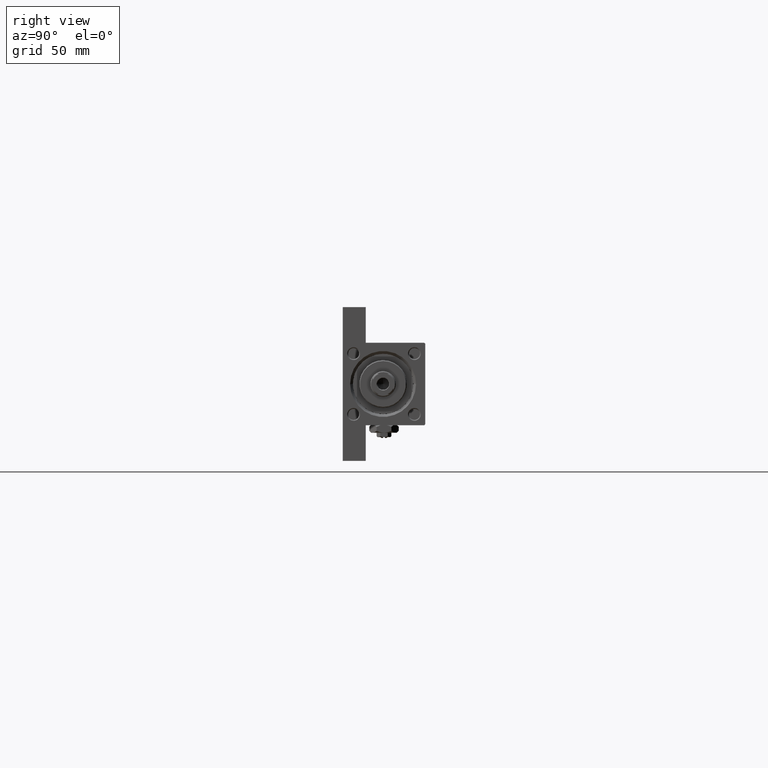
[diagram: clean part render]
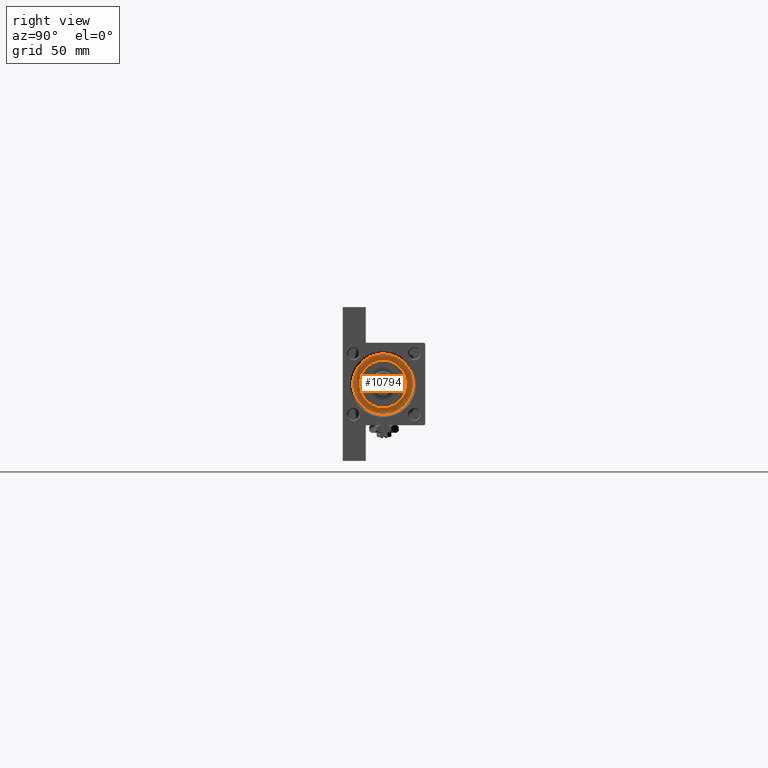
[diagram: same view with one face highlighted and labeled with its STEP entity id]
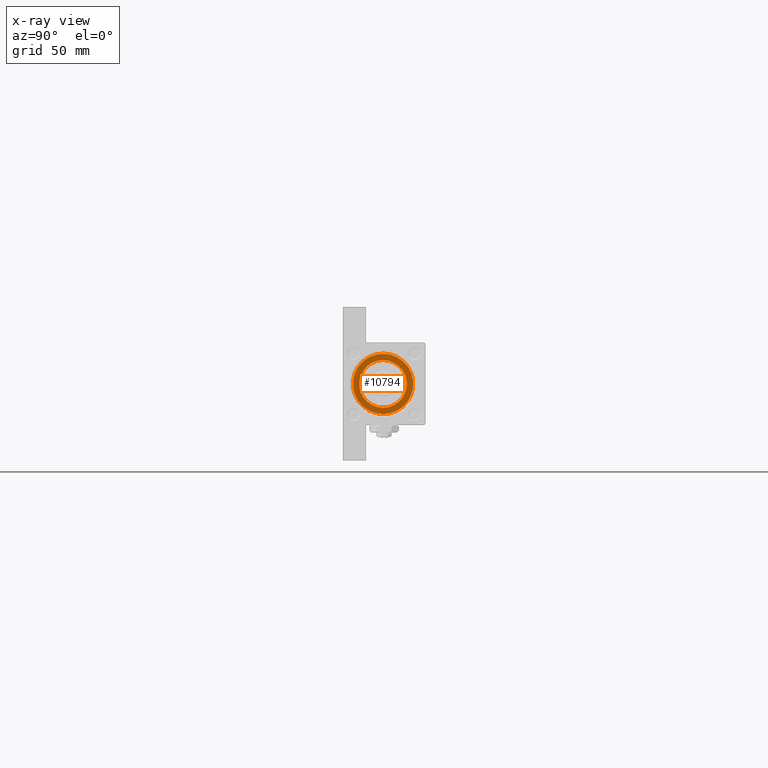
[diagram: x-ray of the same camera — body ghosted, the highlighted face saturated]
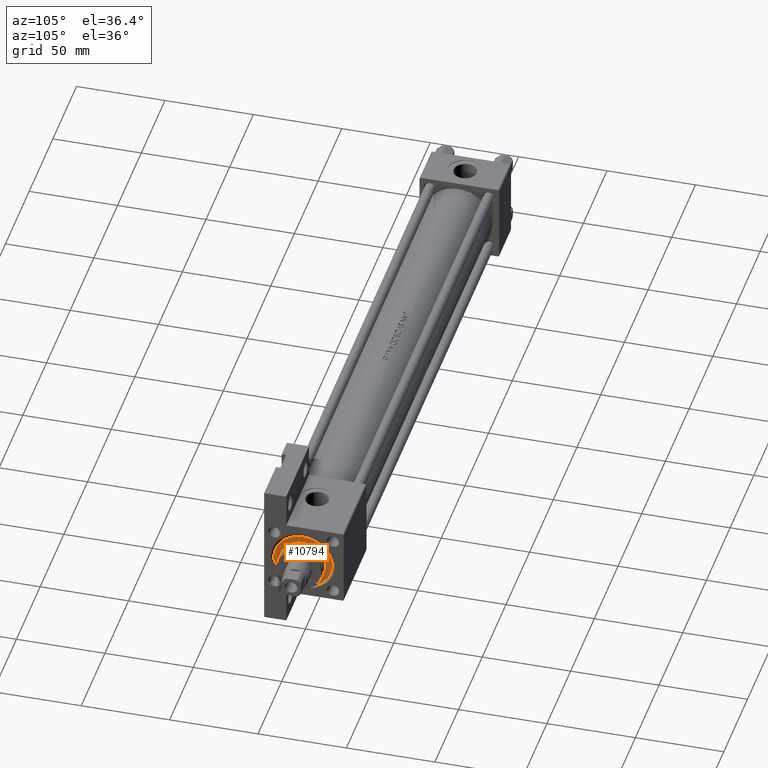
[diagram: same view with one face highlighted and labeled with its STEP entity id]
A machine part, right view. The second image highlights one B-rep face of the part: STEP entity #10794.
The next image is the same camera in x-ray: the body ghosted, the highlighted face saturated — about 0% of this face is hidden behind the body in this view.
A second angle (auxiliary view) of the same face is appended — the face is thin or edge-on in the first view.
In plain terms, the highlighted planar face has unit normal (1, 0, 0).
Its self-contained STEP definition (entity closure, byte-faithful):
#2390 = FACE_OUTER_BOUND ( 'NONE', #22162, .T. ) ;
#3408 = ORIENTED_EDGE ( 'NONE', *, *, #24437, .T. ) ;
#5044 = AXIS2_PLACEMENT_3D ( 'NONE', #23371, #11813, #19367 ) ;
#5951 = ORIENTED_EDGE ( 'NONE', *, *, #44220, .F. ) ;
#7941 = DIRECTION ( 'NONE',  ( 0.000000000000000000, 0.000000000000000000, 1.000000000000000000 ) ) ;
#8136 = DIRECTION ( 'NONE',  ( 0.000000000000000000, 0.000000000000000000, 1.000000000000000000 ) ) ;
#8417 = CARTESIAN_POINT ( 'NONE',  ( 0.000000000000000000, 0.000000000000000000, 28.69999999999999929 ) ) ;
#10203 = DIRECTION ( 'NONE',  ( 0.000000000000000000, 0.000000000000000000, 1.000000000000000000 ) ) ;
#10794 = ADVANCED_FACE ( 'NONE', ( #21523, #2390 ), #17759, .T. ) ;
#11510 = CIRCLE ( 'NONE', #5044, 13.00000000000000178 ) ;
#11813 = DIRECTION ( 'NONE',  ( 0.000000000000000000, 0.000000000000000000, 1.000000000000000000 ) ) ;
#12445 = VERTEX_POINT ( 'NONE', #14996 ) ;
#13519 = CARTESIAN_POINT ( 'NONE',  ( 0.000000000000000000, 0.000000000000000000, 28.69999999999999929 ) ) ;
#14996 = CARTESIAN_POINT ( 'NONE',  ( -16.50000000000000000, 0.000000000000000000, 28.69999999999999929 ) ) ;
#15596 = EDGE_CURVE ( 'NONE', #34330, #33456, #11510, .T. ) ;
#15921 = CIRCLE ( 'NONE', #37582, 16.50000000000000000 ) ;
#16772 = DIRECTION ( 'NONE',  ( 1.000000000000000000, 0.000000000000000000, 0.000000000000000000 ) ) ;
#17759 = PLANE ( 'NONE',  #19514 ) ;
#19367 = DIRECTION ( 'NONE',  ( 1.000000000000000000, 0.000000000000000000, 0.000000000000000000 ) ) ;
#19509 = DIRECTION ( 'NONE',  ( 1.000000000000000000, 0.000000000000000000, 0.000000000000000000 ) ) ;
#19514 = AXIS2_PLACEMENT_3D ( 'NONE', #35803, #10203, #21017 ) ;
#21017 = DIRECTION ( 'NONE',  ( 1.000000000000000000, 0.000000000000000000, -0.000000000000000000 ) ) ;
#21523 = FACE_BOUND ( 'NONE', #48663, .T. ) ;
#21566 = ORIENTED_EDGE ( 'NONE', *, *, #39380, .T. ) ;
#22162 = EDGE_LOOP ( 'NONE', ( #3408, #21566 ) ) ;
#22391 = AXIS2_PLACEMENT_3D ( 'NONE', #13519, #28824, #16772 ) ;
#22454 = AXIS2_PLACEMENT_3D ( 'NONE', #8417, #7941, #19509 ) ;
#23371 = CARTESIAN_POINT ( 'NONE',  ( 0.000000000000000000, 0.000000000000000000, 28.69999999999999929 ) ) ;
#23464 = DIRECTION ( 'NONE',  ( 1.000000000000000000, 0.000000000000000000, 0.000000000000000000 ) ) ;
#24437 = EDGE_CURVE ( 'NONE', #12445, #26861, #15921, .T. ) ;
#26508 = CARTESIAN_POINT ( 'NONE',  ( 0.000000000000000000, 0.000000000000000000, 28.69999999999999929 ) ) ;
#26861 = VERTEX_POINT ( 'NONE', #40328 ) ;
#27215 = CIRCLE ( 'NONE', #22454, 13.00000000000000178 ) ;
#28824 = DIRECTION ( 'NONE',  ( 0.000000000000000000, 0.000000000000000000, 1.000000000000000000 ) ) ;
#31179 = CIRCLE ( 'NONE', #22391, 16.50000000000000000 ) ;
#32575 = CARTESIAN_POINT ( 'NONE',  ( -13.00000000000000178, 0.000000000000000000, 28.69999999999999929 ) ) ;
#33456 = VERTEX_POINT ( 'NONE', #32575 ) ;
#34330 = VERTEX_POINT ( 'NONE', #38253 ) ;
#35803 = CARTESIAN_POINT ( 'NONE',  ( 0.000000000000000000, 0.000000000000000000, 28.69999999999999929 ) ) ;
#37582 = AXIS2_PLACEMENT_3D ( 'NONE', #26508, #8136, #23464 ) ;
#38253 = CARTESIAN_POINT ( 'NONE',  ( 13.00000000000000178, 1.592040838891559293E-15, 28.69999999999999929 ) ) ;
#38590 = ORIENTED_EDGE ( 'NONE', *, *, #15596, .F. ) ;
#39380 = EDGE_CURVE ( 'NONE', #26861, #12445, #31179, .T. ) ;
#40328 = CARTESIAN_POINT ( 'NONE',  ( 16.50000000000000000, 2.020667218593133100E-15, 28.69999999999999929 ) ) ;
#44220 = EDGE_CURVE ( 'NONE', #33456, #34330, #27215, .T. ) ;
#48663 = EDGE_LOOP ( 'NONE', ( #5951, #38590 ) ) ;